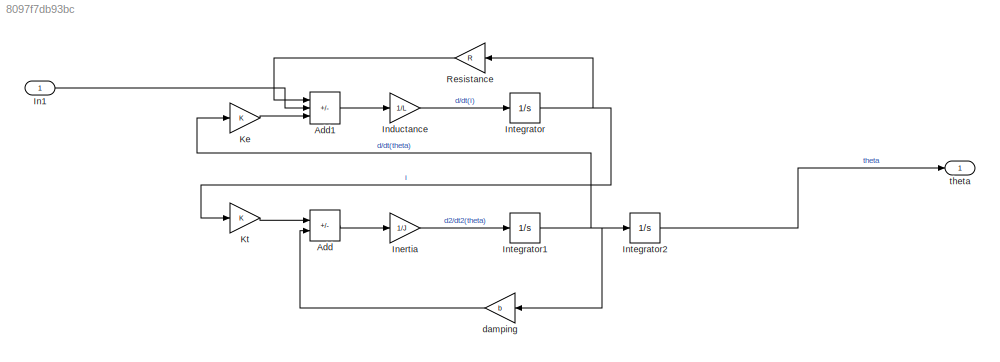
MODEL slx_8097f7db93bc
KIND model
CONFIG AbsTol = auto
CONFIG EnableMultiTasking = off
CONFIG FixedStep = auto
CONFIG MaxStep = auto
CONFIG MinStep = auto
CONFIG RelTol = 1e-3
CONFIG SampleTimeConstraint = Unconstrained
CONFIG SolverName = VariableStepAuto
CONFIG StartTime = 0.0
CONFIG StopTime = 10.0
BLOCK [Sum] Add
  IconShape = rectangular
  Inputs = +-
  Ports = [2, 1]
BLOCK [Sum] Add1
  IconShape = rectangular
  Inputs = -+-
  Ports = [3, 1]
BLOCK [Inport] In1
  OutDataTypeStr = double
  PortDimensions = 1
  SampleTime = 0
  SamplingMode = Sample based
  SignalType = real
BLOCK [Gain] Inductance
  Gain = 1/L
BLOCK [Gain] Inertia
  Gain = 1/J
BLOCK [Integrator] Integrator
  Ports = [1, 1]
BLOCK [Integrator] Integrator1
  Ports = [1, 1]
BLOCK [Integrator] Integrator2
  Ports = [1, 1]
BLOCK [Gain] Ke
  Gain = K
BLOCK [Gain] Kt
  Gain = K
BLOCK [Gain] Resistance
  Gain = R
BLOCK [Gain] damping
  Gain = b
BLOCK [Outport] theta
  OutDataTypeStr = double
  PortDimensions = 1
  SampleTime = 0
  SamplingMode = Sample based
  SignalType = real
LINE Add1:1 -> Inductance:1
LINE Add:1 -> Inertia:1
LINE In1:1 -> Add1:2
LINE Inductance:1 -> Integrator:1
LINE Inertia:1 -> Integrator1:1
NET Integrator1:1 -> Integrator2:1, Ke:1, damping:1
LINE Integrator2:1 -> theta:1
NET Integrator:1 -> Kt:1, Resistance:1
LINE Ke:1 -> Add1:3
LINE Kt:1 -> Add:1
LINE Resistance:1 -> Add1:1
LINE damping:1 -> Add:2
note: NET lines group one-source signal fan-out (src -> all destinations, sorted); 1:1 wires keep LINE
